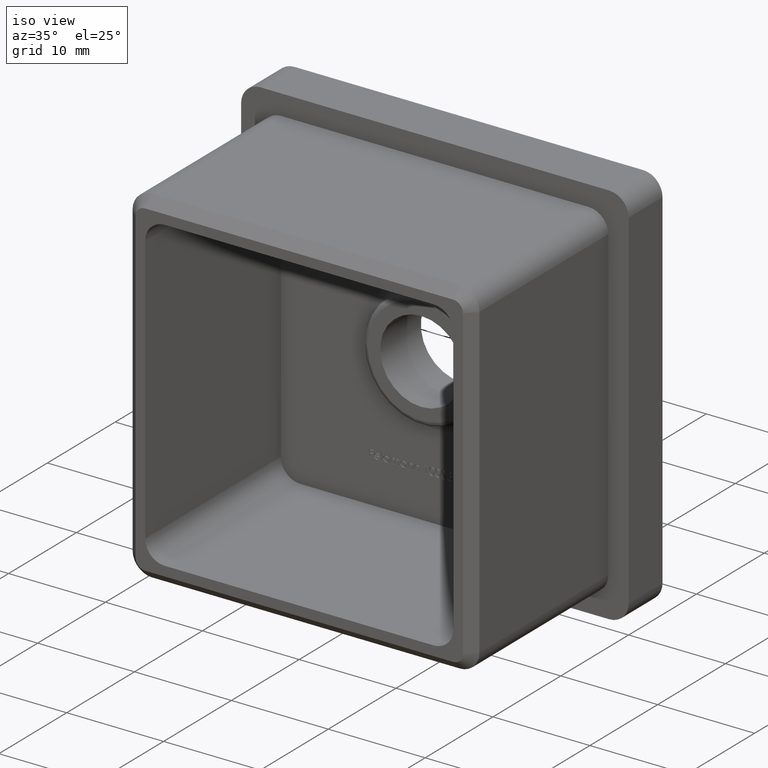
[diagram: clean part render]
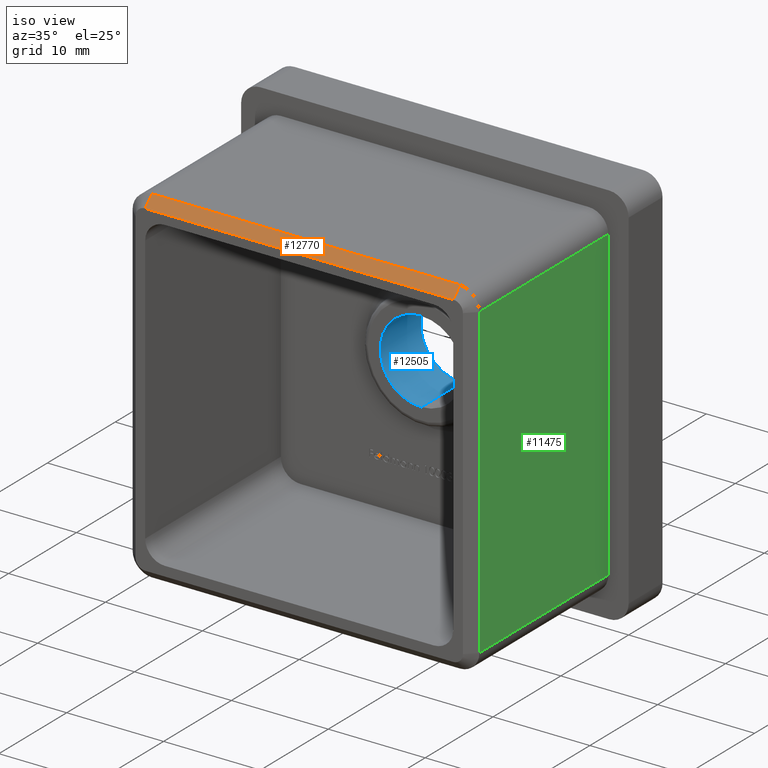
[diagram: same view with three faces highlighted in distinct colors, each labeled with its STEP entity id]
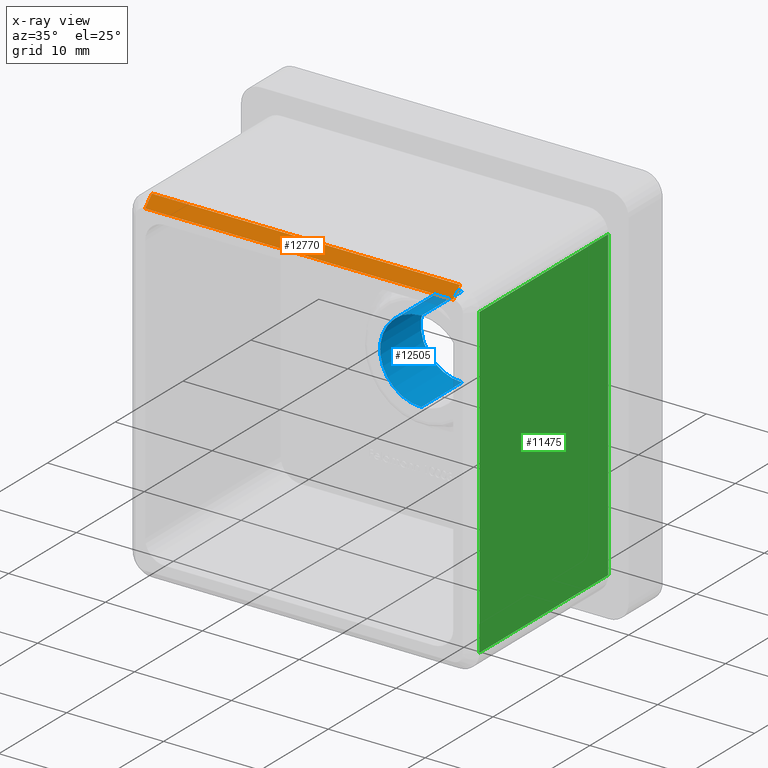
[diagram: x-ray of the same camera — body ghosted, the three highlighted faces saturated]
A machine part, iso view with three faces highlighted in distinct colors.
The next image is the same camera in x-ray (body ghosted, the three faces saturated) — at least one of them is partly hidden behind the body in this view.
Their STEP definitions:

[orange] entity #12770 — the highlighted planar face has unit normal (0, -0.7071, 0.7071).
#99 = VECTOR ( 'NONE', #1654, 1000.000000000000000 ) ;
#515 = VERTEX_POINT ( 'NONE', #15312 ) ;
#774 = DIRECTION ( 'NONE',  ( 0.0000000000000000000, -0.7071067811865474600, -0.7071067811865474600 ) ) ;
#946 = LINE ( 'NONE', #2791, #9180 ) ;
#1082 = EDGE_LOOP ( 'NONE', ( #2388, #10571, #5689, #9349 ) ) ;
#1286 = CARTESIAN_POINT ( 'NONE',  ( 0.0000000000000000000, -20.00000000000000000, 16.90000000000000200 ) ) ;
#1654 = DIRECTION ( 'NONE',  ( 1.000000000000000000, 0.0000000000000000000, 0.0000000000000000000 ) ) ;
#2022 = LINE ( 'NONE', #9932, #15253 ) ;
#2388 = ORIENTED_EDGE ( 'NONE', *, *, #8617, .T. ) ;
#2791 = CARTESIAN_POINT ( 'NONE',  ( -15.90000000000000400, -20.00000000000000000, 16.90000000000000200 ) ) ;
#2929 = AXIS2_PLACEMENT_3D ( 'NONE', #1286, #8896, #8841 ) ;
#3064 = EDGE_CURVE ( 'NONE', #16271, #6121, #3528, .T. ) ;
#3528 = LINE ( 'NONE', #5730, #99 ) ;
#3578 = CARTESIAN_POINT ( 'NONE',  ( 15.90000000000000700, -19.00000000000000000, 17.90000000000000200 ) ) ;
#4383 = CARTESIAN_POINT ( 'NONE',  ( -15.90000000000000400, -19.00000000000000000, 17.90000000000000200 ) ) ;
#4472 = CARTESIAN_POINT ( 'NONE',  ( -15.90000000000000400, -19.00000000000000000, 17.90000000000000200 ) ) ;
#5267 = VERTEX_POINT ( 'NONE', #10334 ) ;
#5486 = EDGE_CURVE ( 'NONE', #515, #5267, #946, .T. ) ;
#5689 = ORIENTED_EDGE ( 'NONE', *, *, #14750, .F. ) ;
#5730 = CARTESIAN_POINT ( 'NONE',  ( 15.90000000000000700, -19.00000000000000000, 17.90000000000000200 ) ) ;
#6121 = VERTEX_POINT ( 'NONE', #3578 ) ;
#6695 = VECTOR ( 'NONE', #774, 1000.000000000000100 ) ;
#7705 = LINE ( 'NONE', #4472, #6695 ) ;
#8617 = EDGE_CURVE ( 'NONE', #16271, #5267, #7705, .T. ) ;
#8841 = DIRECTION ( 'NONE',  ( 1.000000000000000000, 0.0000000000000000000, 0.0000000000000000000 ) ) ;
#8896 = DIRECTION ( 'NONE',  ( 0.0000000000000000000, -0.7071067811865475700, 0.7071067811865475700 ) ) ;
#9180 = VECTOR ( 'NONE', #11850, 1000.000000000000000 ) ;
#9238 = FACE_OUTER_BOUND ( 'NONE', #1082, .T. ) ;
#9349 = ORIENTED_EDGE ( 'NONE', *, *, #3064, .F. ) ;
#9932 = CARTESIAN_POINT ( 'NONE',  ( 15.90000000000000700, -19.00000000000000000, 17.90000000000000200 ) ) ;
#10334 = CARTESIAN_POINT ( 'NONE',  ( -15.90000000000000400, -20.00000000000000000, 16.90000000000000200 ) ) ;
#10571 = ORIENTED_EDGE ( 'NONE', *, *, #5486, .F. ) ;
#11850 = DIRECTION ( 'NONE',  ( -1.000000000000000000, 0.0000000000000000000, 0.0000000000000000000 ) ) ;
#12770 = ADVANCED_FACE ( 'NONE', ( #9238 ), #15368, .T. ) ;
#13658 = DIRECTION ( 'NONE',  ( 0.0000000000000000000, -0.7071067811865474600, -0.7071067811865474600 ) ) ;
#14750 = EDGE_CURVE ( 'NONE', #6121, #515, #2022, .T. ) ;
#15253 = VECTOR ( 'NONE', #13658, 1000.000000000000100 ) ;
#15312 = CARTESIAN_POINT ( 'NONE',  ( 15.90000000000000700, -20.00000000000000000, 16.90000000000000200 ) ) ;
#15368 = PLANE ( 'NONE',  #2929 ) ;
#16271 = VERTEX_POINT ( 'NONE', #4383 ) ;

[blue] entity #12505 — the highlighted cylindrical surface (partial cylindrical patch) has radius 4.25 mm, axis along (-0, -1, -0).
#111 = LINE ( 'NONE', #4081, #6761 ) ;
#385 = ORIENTED_EDGE ( 'NONE', *, *, #8298, .T. ) ;
#1173 = FACE_OUTER_BOUND ( 'NONE', #15881, .T. ) ;
#1793 = CARTESIAN_POINT ( 'NONE',  ( 7.654042494670953700E-016, -2.000000000000000400, 4.249999999999996400 ) ) ;
#1858 = EDGE_CURVE ( 'NONE', #5317, #4797, #111, .T. ) ;
#1892 = CARTESIAN_POINT ( 'NONE',  ( 2.449293598294707400E-016, -2.000000000000000400, 0.0000000000000000000 ) ) ;
#2023 = DIRECTION ( 'NONE',  ( -0.0000000000000000000, -1.000000000000000000, -0.0000000000000000000 ) ) ;
#3596 = DIRECTION ( 'NONE',  ( 0.0000000000000000000, 0.0000000000000000000, -1.000000000000000000 ) ) ;
#4081 = CARTESIAN_POINT ( 'NONE',  ( 2.449293598294707400E-016, -2.000000000000000400, -4.249999999999996400 ) ) ;
#4797 = VERTEX_POINT ( 'NONE', #14551 ) ;
#5144 = AXIS2_PLACEMENT_3D ( 'NONE', #5783, #7121, #12998 ) ;
#5317 = VERTEX_POINT ( 'NONE', #6673 ) ;
#5783 = CARTESIAN_POINT ( 'NONE',  ( 2.449293598294707400E-016, 4.000000000000007100, 0.0000000000000000000 ) ) ;
#6673 = CARTESIAN_POINT ( 'NONE',  ( 2.449293598294707400E-016, 4.000000000000007100, -4.249999999999996400 ) ) ;
#6761 = VECTOR ( 'NONE', #12894, 1000.000000000000000 ) ;
#6895 = EDGE_CURVE ( 'NONE', #15842, #4797, #13547, .T. ) ;
#7121 = DIRECTION ( 'NONE',  ( -0.0000000000000000000, 1.000000000000000000, -0.0000000000000000000 ) ) ;
#7323 = VECTOR ( 'NONE', #2023, 1000.000000000000000 ) ;
#7491 = DIRECTION ( 'NONE',  ( -0.0000000000000000000, -1.000000000000000000, -0.0000000000000000000 ) ) ;
#7635 = AXIS2_PLACEMENT_3D ( 'NONE', #8785, #7491, #3596 ) ;
#7952 = ORIENTED_EDGE ( 'NONE', *, *, #12321, .T. ) ;
#8298 = EDGE_CURVE ( 'NONE', #15110, #15842, #10733, .T. ) ;
#8785 = CARTESIAN_POINT ( 'NONE',  ( 2.449293598294707400E-016, -2.000000000000000400, 0.0000000000000000000 ) ) ;
#9804 = CARTESIAN_POINT ( 'NONE',  ( 7.654042494670953700E-016, -2.000000000000000400, 4.249999999999996400 ) ) ;
#10733 = LINE ( 'NONE', #1793, #7323 ) ;
#11004 = DIRECTION ( 'NONE',  ( -0.0000000000000000000, -1.000000000000000000, -0.0000000000000000000 ) ) ;
#11077 = CIRCLE ( 'NONE', #5144, 4.249999999999996400 ) ;
#11203 = AXIS2_PLACEMENT_3D ( 'NONE', #1892, #11004, #13603 ) ;
#12250 = CARTESIAN_POINT ( 'NONE',  ( 7.654042494670953700E-016, 4.000000000000007100, 4.249999999999996400 ) ) ;
#12321 = EDGE_CURVE ( 'NONE', #5317, #15110, #11077, .T. ) ;
#12505 = ADVANCED_FACE ( 'NONE', ( #1173 ), #12818, .F. ) ;
#12818 = CYLINDRICAL_SURFACE ( 'NONE', #11203, 4.249999999999996400 ) ;
#12894 = DIRECTION ( 'NONE',  ( -0.0000000000000000000, -1.000000000000000000, -0.0000000000000000000 ) ) ;
#12998 = DIRECTION ( 'NONE',  ( 0.0000000000000000000, 0.0000000000000000000, 1.000000000000000000 ) ) ;
#13070 = ORIENTED_EDGE ( 'NONE', *, *, #1858, .F. ) ;
#13547 = CIRCLE ( 'NONE', #7635, 4.249999999999996400 ) ;
#13603 = DIRECTION ( 'NONE',  ( 0.0000000000000000000, 0.0000000000000000000, -1.000000000000000000 ) ) ;
#14551 = CARTESIAN_POINT ( 'NONE',  ( 2.449293598294707400E-016, -2.000000000000000400, -4.249999999999996400 ) ) ;
#14894 = ORIENTED_EDGE ( 'NONE', *, *, #6895, .T. ) ;
#15110 = VERTEX_POINT ( 'NONE', #12250 ) ;
#15842 = VERTEX_POINT ( 'NONE', #9804 ) ;
#15881 = EDGE_LOOP ( 'NONE', ( #7952, #385, #14894, #13070 ) ) ;

[green] entity #11475 — the highlighted planar face has unit normal (-1, 0, -0).
#631 = CARTESIAN_POINT ( 'NONE',  ( 17.90000000000000200, 0.0000000000000000000, -15.90000000000000700 ) ) ;
#736 = DIRECTION ( 'NONE',  ( 0.0000000000000000000, 0.0000000000000000000, -1.000000000000000000 ) ) ;
#1828 = FACE_OUTER_BOUND ( 'NONE', #3399, .T. ) ;
#1920 = DIRECTION ( 'NONE',  ( -0.0000000000000000000, 0.0000000000000000000, 1.000000000000000000 ) ) ;
#1957 = EDGE_CURVE ( 'NONE', #5637, #8439, #9989, .T. ) ;
#2752 = LINE ( 'NONE', #7138, #6801 ) ;
#2916 = VECTOR ( 'NONE', #12413, 1000.000000000000000 ) ;
#3186 = LINE ( 'NONE', #5680, #10205 ) ;
#3399 = EDGE_LOOP ( 'NONE', ( #14299, #4429, #8892, #11091 ) ) ;
#3740 = EDGE_CURVE ( 'NONE', #8439, #11466, #16535, .T. ) ;
#4140 = EDGE_CURVE ( 'NONE', #6032, #5637, #3186, .T. ) ;
#4160 = EDGE_CURVE ( 'NONE', #11466, #6032, #2752, .T. ) ;
#4328 = PLANE ( 'NONE',  #5724 ) ;
#4429 = ORIENTED_EDGE ( 'NONE', *, *, #4160, .T. ) ;
#4440 = CARTESIAN_POINT ( 'NONE',  ( 17.90000000000000200, -20.00000000000000000, 17.90000000000000200 ) ) ;
#4714 = CARTESIAN_POINT ( 'NONE',  ( 17.90000000000000200, -19.00000000000000000, -15.90000000000000700 ) ) ;
#5637 = VERTEX_POINT ( 'NONE', #631 ) ;
#5680 = CARTESIAN_POINT ( 'NONE',  ( 17.90000000000000200, -20.00000000000000000, -15.90000000000000700 ) ) ;
#5724 = AXIS2_PLACEMENT_3D ( 'NONE', #4440, #13368, #1920 ) ;
#5803 = CARTESIAN_POINT ( 'NONE',  ( 17.90000000000000200, 0.0000000000000000000, 17.90000000000000200 ) ) ;
#5936 = DIRECTION ( 'NONE',  ( -0.0000000000000000000, -1.000000000000000000, -0.0000000000000000000 ) ) ;
#6032 = VERTEX_POINT ( 'NONE', #4714 ) ;
#6801 = VECTOR ( 'NONE', #736, 1000.000000000000000 ) ;
#7138 = CARTESIAN_POINT ( 'NONE',  ( 17.90000000000000200, -19.00000000000000000, -15.90000000000000700 ) ) ;
#8269 = CARTESIAN_POINT ( 'NONE',  ( 17.90000000000000200, 0.0000000000000000000, 15.90000000000000400 ) ) ;
#8439 = VERTEX_POINT ( 'NONE', #8269 ) ;
#8892 = ORIENTED_EDGE ( 'NONE', *, *, #4140, .T. ) ;
#9803 = CARTESIAN_POINT ( 'NONE',  ( 17.90000000000000200, -20.00000000000000000, 15.90000000000000400 ) ) ;
#9989 = LINE ( 'NONE', #5803, #2916 ) ;
#10205 = VECTOR ( 'NONE', #11065, 1000.000000000000000 ) ;
#11065 = DIRECTION ( 'NONE',  ( 0.0000000000000000000, 1.000000000000000000, 0.0000000000000000000 ) ) ;
#11091 = ORIENTED_EDGE ( 'NONE', *, *, #1957, .T. ) ;
#11466 = VERTEX_POINT ( 'NONE', #14699 ) ;
#11475 = ADVANCED_FACE ( 'NONE', ( #1828 ), #4328, .F. ) ;
#12413 = DIRECTION ( 'NONE',  ( -0.0000000000000000000, -0.0000000000000000000, 1.000000000000000000 ) ) ;
#13142 = VECTOR ( 'NONE', #5936, 1000.000000000000000 ) ;
#13368 = DIRECTION ( 'NONE',  ( -1.000000000000000000, 0.0000000000000000000, -0.0000000000000000000 ) ) ;
#14299 = ORIENTED_EDGE ( 'NONE', *, *, #3740, .T. ) ;
#14699 = CARTESIAN_POINT ( 'NONE',  ( 17.90000000000000200, -19.00000000000000000, 15.90000000000000400 ) ) ;
#16535 = LINE ( 'NONE', #9803, #13142 ) ;